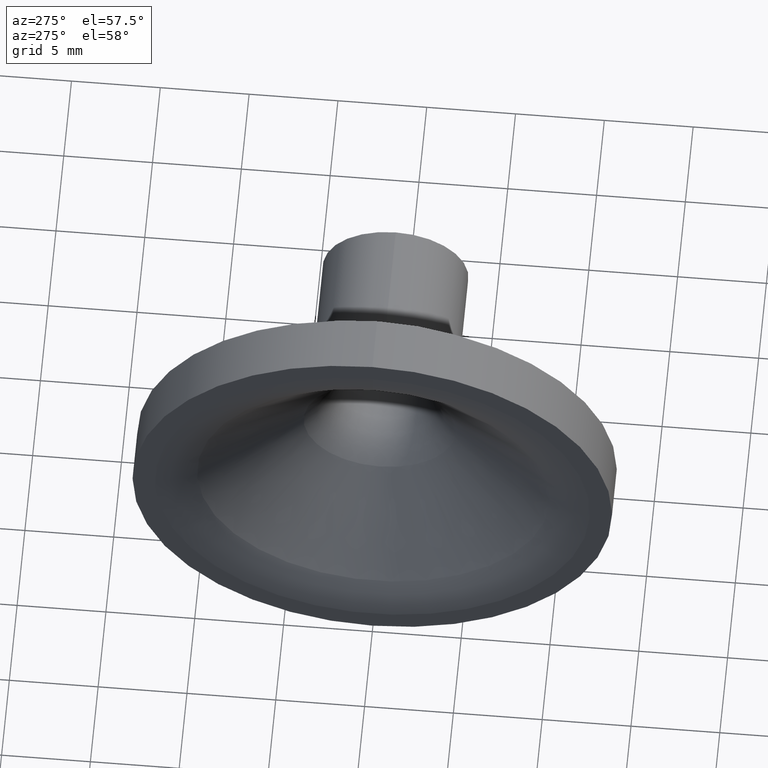
[diagram: clean part render]
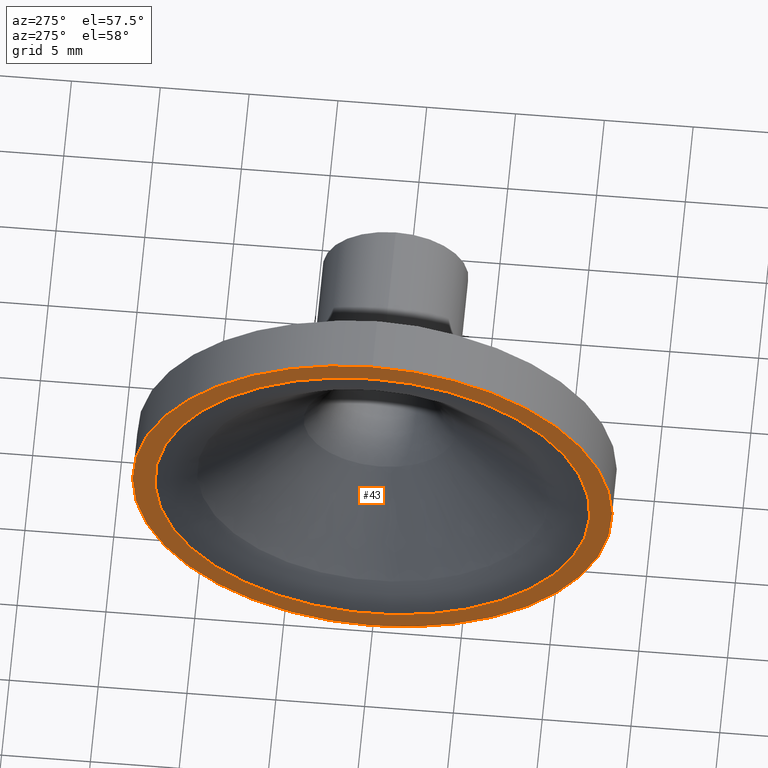
[diagram: same view with one face highlighted and labeled with its STEP entity id]
A machine part, auxiliary view. The second image highlights one B-rep face of the part: STEP entity #43.
In plain terms, the highlighted planar face has unit normal (1, 0, 0).
Its self-contained STEP definition (entity closure, byte-faithful):
#43 = ADVANCED_FACE( '', ( #92, #93 ), #94, .F. );
#92 = FACE_OUTER_BOUND( '', #151, .T. );
#93 = FACE_BOUND( '', #152, .T. );
#94 = PLANE( '', #153 );
#151 = EDGE_LOOP( '', ( #210 ) );
#152 = EDGE_LOOP( '', ( #211 ) );
#153 = AXIS2_PLACEMENT_3D( '', #212, #213, #214 );
#210 = ORIENTED_EDGE( '', *, *, #278, .T. );
#211 = ORIENTED_EDGE( '', *, *, #270, .F. );
#212 = CARTESIAN_POINT( '', ( -15.0000000000000, 0.000000000000000, 13.2355095289373 ) );
#213 = DIRECTION( '', ( 1.00000000000000, 0.000000000000000, 0.000000000000000 ) );
#214 = DIRECTION( '', ( 0.000000000000000, 0.000000000000000, -1.00000000000000 ) );
#270 = EDGE_CURVE( '', #296, #296, #297, .T. );
#278 = EDGE_CURVE( '', #309, #309, #310, .T. );
#296 = VERTEX_POINT( '', #335 );
#297 = CIRCLE( '', #336, 12.2500000000000 );
#309 = VERTEX_POINT( '', #348 );
#310 = CIRCLE( '', #349, 13.5000000000000 );
#335 = CARTESIAN_POINT( '', ( -15.0000000000000, 0.000000000000000, 12.2500000000000 ) );
#336 = AXIS2_PLACEMENT_3D( '', #373, #374, #375 );
#348 = CARTESIAN_POINT( '', ( -15.0000000000000, 0.000000000000000, 13.5000000000000 ) );
#349 = AXIS2_PLACEMENT_3D( '', #388, #389, #390 );
#373 = CARTESIAN_POINT( '', ( -15.0000000000000, 0.000000000000000, 0.000000000000000 ) );
#374 = DIRECTION( '', ( -1.00000000000000, 0.000000000000000, 0.000000000000000 ) );
#375 = DIRECTION( '', ( 0.000000000000000, 0.000000000000000, 1.00000000000000 ) );
#388 = CARTESIAN_POINT( '', ( -15.0000000000000, 0.000000000000000, 0.000000000000000 ) );
#389 = DIRECTION( '', ( -1.00000000000000, 0.000000000000000, 0.000000000000000 ) );
#390 = DIRECTION( '', ( 0.000000000000000, 0.000000000000000, 1.00000000000000 ) );